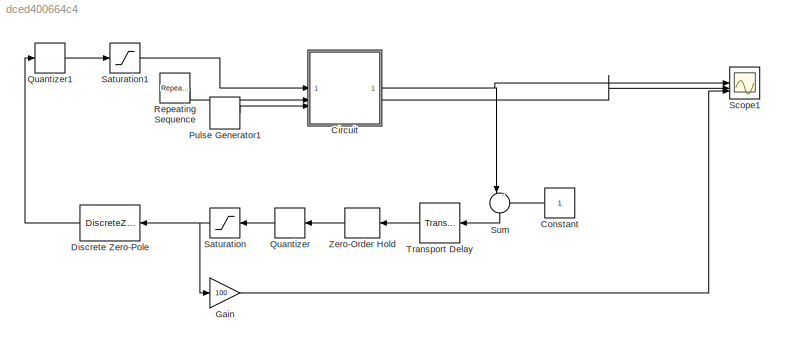
MODEL mdl_dced400664c4
KIND model
CONFIG AbsTol = auto
CONFIG EnableMultiTasking = off
CONFIG FixedStep = auto
CONFIG MaxStep = 1e-6
CONFIG MinStep = auto
CONFIG RelTol = 1e-3
CONFIG SampleTimeConstraint = Unconstrained
CONFIG SolverName = ode45
CONFIG StartTime = 0.0
CONFIG StopTime = 1
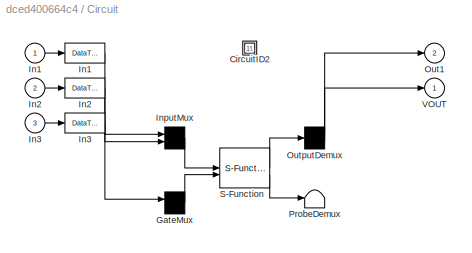
BLOCK [SubSystem] Circuit
  CopyFcn = plecs('sl', 203);
  DeleteFcn = plecs('sl', 205);
  DestroyFcn = plecs('sl', 207);
  ErrorFcn = plerrorfcn
  InitFcn = plecs('sl', 214);
  LoadFcn = plecs('sl', 200);
  NameChangeFcn = plecs('sl', 210);
  OpenFcn = plecs('sl', 202);
  PostSaveFcn = plecs('sl', 201);
  PreCopyFcn = plecs('sl', 216);
  PreSaveFcn = plecs('sl', 211);
  StartFcn = plecs('sl', 208);
  StopFcn = plecs('sl', 209);
  UndoDeleteFcn = plecs('sl', 206);
BLOCK [SubSystem] Circuit/ CircuitID2 
BLOCK [Mux] Circuit/ GateMux 
  Inputs = [ 1 ]
BLOCK [DataTypeConversion] Circuit/ In1 
BLOCK [DataTypeConversion] Circuit/ In2 
BLOCK [DataTypeConversion] Circuit/ In3 
BLOCK [Mux] Circuit/ InputMux 
  Inputs = [ 1 1 ]
BLOCK [Demux] Circuit/ OutputDemux 
  Outputs = [ 1 1 ]
BLOCK [Terminator] Circuit/ ProbeDemux 
BLOCK [S-Function] Circuit/ S-Function 
  EnableBusSupport = off
  FunctionName = plecs
  SFcnIsStateOwnerBlock = off
  SFunctionDeploymentMode = off
BLOCK [Inport] Circuit/In1
  PortDimensions = 1
BLOCK [Inport] Circuit/In2
  Port = 2
  PortDimensions = 1
BLOCK [Inport] Circuit/In3
  Port = 3
  PortDimensions = 1
BLOCK [Outport] Circuit/Out1
  Port = 2
  PortDimensions = 1
BLOCK [Outport] Circuit/VOUT
  PortDimensions = 1
BLOCK [Constant] Constant
BLOCK [DiscreteZeroPole] Discrete Zero-Pole
  Gain = 9.4572
  Poles = [1 -0.5634]
  SampleTime = -1
  Zeros = [0.9346 0.9848]
BLOCK [Gain] Gain
  Gain = 100
BLOCK [DiscretePulseGenerator] Pulse Generator1
  Period = 0.1
  PulseType = Time based
  PulseWidth = 50
BLOCK [Quantizer] Quantizer
  QuantizationInterval = 15.625e-3
BLOCK [Quantizer] Quantizer1
  QuantizationInterval = 1/256
BLOCK [Reference] Repeating Sequence  REF=simulink/Sources/Repeating
Sequence
  SourceBlock = simulink/Sources/Repeating\nSequence
  SourceType = Repeating table
BLOCK [Saturate] Saturation
  LowerLimit = -62.5e-3
  UpperLimit = 62.5e-3
BLOCK [Saturate] Saturation1
  LowerLimit = 0.05
  UpperLimit = 0.95
BLOCK [Scope] Scope1
  Floating = off
  NumInputPorts = 3
  ScopeSpecificationString = Simulink.scopes.TimeScopeBlockCfg('CurrentConfiguration', extmgr.ConfigurationSet(extmgr.Configuration('Core','General UI',true,'FigureColor',[1 1 1]),extmgr.Configuration('Core','Source UI',true),extmgr.Configuration('Sources','WiredSimulink',true,'DataLoggingVariableName','ScopeData1'),extmgr.Configuration('Visuals','Time Domain',true,'SerializedDisplays',{struct('MinYLimReal','0.96747','MaxYLim...<+3068ch>
BLOCK [Sum] Sum
  Inputs = |-+
  NameLocation = left
BLOCK [TransportDelay] Transport Delay
  DelayTime = 495e-9
BLOCK [ZeroOrderHold] Zero-Order Hold
  SampleTime = 2e-6
NET Circuit:1 -> Scope1:1, Sum:1
LINE Circuit:2 -> Scope1:2
LINE Constant:1 -> Sum:2
LINE Discrete Zero-Pole:1 -> Quantizer1:1
LINE Gain:1 -> Scope1:3
LINE Pulse Generator1:1 -> Circuit:3
LINE Quantizer1:1 -> Saturation1:1
LINE Quantizer:1 -> Saturation:1
LINE Repeating Sequence:1 -> Circuit:2
LINE Saturation1:1 -> Circuit:1
NET Saturation:1 -> Discrete Zero-Pole:1, Gain:1
LINE Sum:1 -> Transport Delay:1
LINE Transport Delay:1 -> Zero-Order Hold:1
LINE Zero-Order Hold:1 -> Quantizer:1
note: NET lines group one-source signal fan-out (src -> all destinations, sorted); 1:1 wires keep LINE
